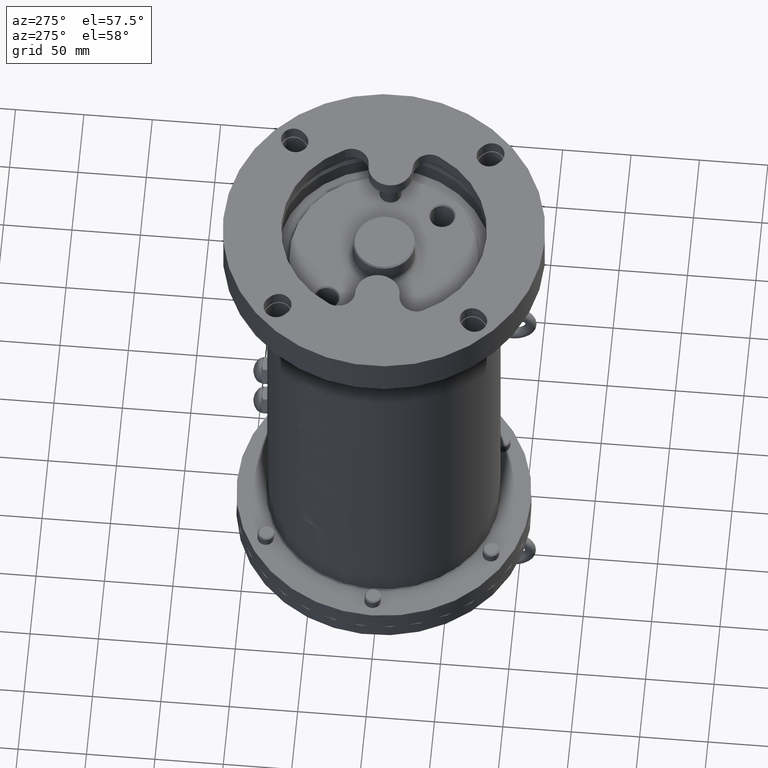
[diagram: clean part render]
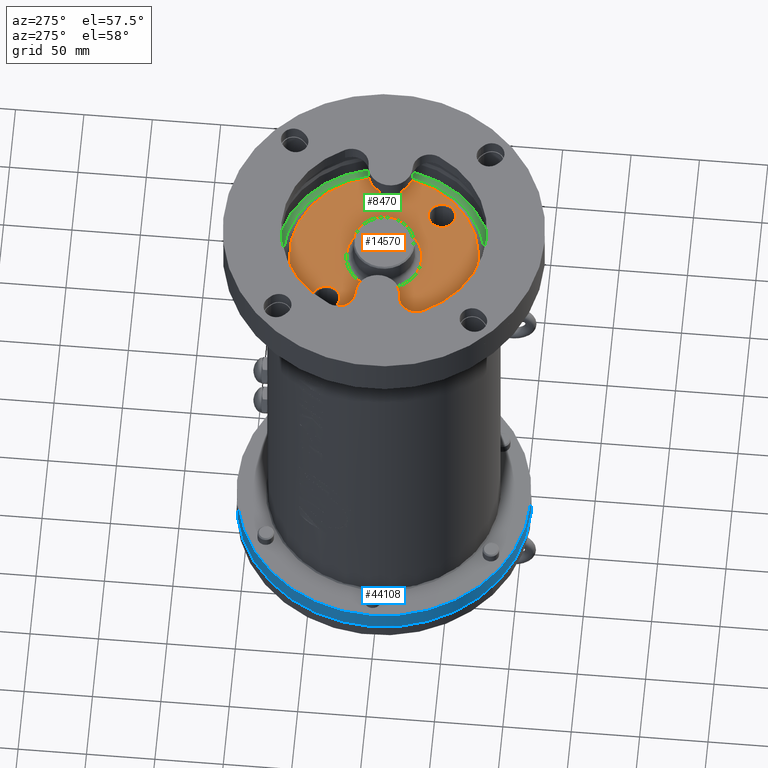
[diagram: same view with three faces highlighted in distinct colors, each labeled with its STEP entity id]
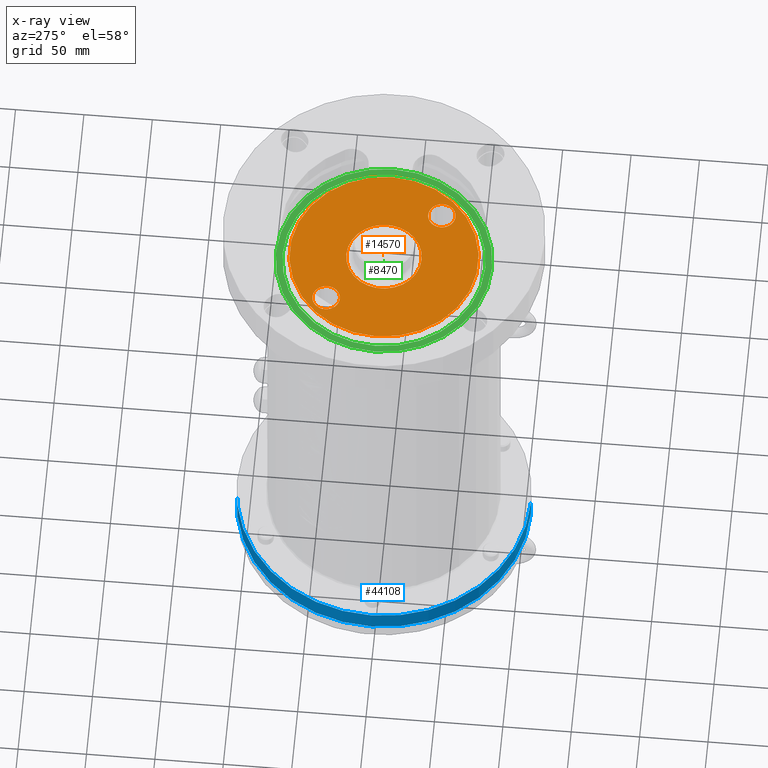
[diagram: x-ray of the same camera — body ghosted, the three highlighted faces saturated]
A machine part, auxiliary view with three faces highlighted in distinct colors.
The next image is the same camera in x-ray (body ghosted, the three faces saturated) — at least one of them is partly hidden behind the body in this view.
Their STEP definitions:

[orange] entity #14570 — the highlighted planar face has unit normal (0, -0, 1).
#129 = ORIENTED_EDGE ( 'NONE', *, *, #36971, .T. ) ;
#138 = ORIENTED_EDGE ( 'NONE', *, *, #23995, .T. ) ;
#190 = AXIS2_PLACEMENT_3D ( 'NONE', #16035, #9126, #12607 ) ;
#428 = ORIENTED_EDGE ( 'NONE', *, *, #6793, .T. ) ;
#713 = AXIS2_PLACEMENT_3D ( 'NONE', #8899, #32845, #40019 ) ;
#1020 = DIRECTION ( 'NONE',  ( -0.0000000000000000000, 1.224646799147353900E-016, -1.000000000000000000 ) ) ;
#1089 = CIRCLE ( 'NONE', #14465, 69.00000000000000000 ) ;
#1267 = CARTESIAN_POINT ( 'NONE',  ( 38.89087296526004400, -38.89087296526020100, -30.00000000000000000 ) ) ;
#1721 = ORIENTED_EDGE ( 'NONE', *, *, #43024, .T. ) ;
#2220 = FACE_BOUND ( 'NONE', #3820, .T. ) ;
#3801 = DIRECTION ( 'NONE',  ( 0.0000000000000000000, 1.000000000000000000, 1.005636797667714300E-016 ) ) ;
#3820 = EDGE_LOOP ( 'NONE', ( #1721, #26472 ) ) ;
#3966 = CARTESIAN_POINT ( 'NONE',  ( 0.0000000000000000000, -27.50000000000000000, -30.00000000000000700 ) ) ;
#5443 = CARTESIAN_POINT ( 'NONE',  ( -69.00000000000000000, -6.123233995736771200E-016, -30.00000000000000000 ) ) ;
#5591 = VERTEX_POINT ( 'NONE', #31689 ) ;
#5869 = DIRECTION ( 'NONE',  ( -0.0000000000000000000, 1.224646799147353900E-016, -1.000000000000000000 ) ) ;
#6096 = CARTESIAN_POINT ( 'NONE',  ( 28.89087296526008000, -38.89087296526020100, -30.00000000000000000 ) ) ;
#6720 = CIRCLE ( 'NONE', #25494, 10.00000000000000200 ) ;
#6793 = EDGE_CURVE ( 'NONE', #25010, #5591, #38236, .T. ) ;
#7366 = ORIENTED_EDGE ( 'NONE', *, *, #27241, .T. ) ;
#8613 = FACE_OUTER_BOUND ( 'NONE', #24585, .T. ) ;
#8899 = CARTESIAN_POINT ( 'NONE',  ( 0.0000000000000000000, -6.123233995736771200E-016, -30.00000000000000000 ) ) ;
#9126 = DIRECTION ( 'NONE',  ( -0.0000000000000000000, 1.224646799147353900E-016, -1.000000000000000000 ) ) ;
#10130 = DIRECTION ( 'NONE',  ( 0.0000000000000000000, 1.000000000000000000, 1.005636797667714300E-016 ) ) ;
#10599 = CIRCLE ( 'NONE', #16439, 69.00000000000000000 ) ;
#11569 = DIRECTION ( 'NONE',  ( -0.0000000000000000000, 1.224646799147353900E-016, -1.000000000000000000 ) ) ;
#12607 = DIRECTION ( 'NONE',  ( 0.0000000000000000000, -1.000000000000000000, 0.0000000000000000000 ) ) ;
#12908 = DIRECTION ( 'NONE',  ( 0.0000000000000000000, -1.000000000000000000, 0.0000000000000000000 ) ) ;
#14465 = AXIS2_PLACEMENT_3D ( 'NONE', #41351, #23859, #3801 ) ;
#14515 = CIRCLE ( 'NONE', #43359, 27.50000000000000000 ) ;
#14570 = ADVANCED_FACE ( 'NONE', ( #2220, #22575, #35926, #8613 ), #21224, .T. ) ;
#14654 = CIRCLE ( 'NONE', #39421, 10.00000000000000200 ) ;
#14916 = VERTEX_POINT ( 'NONE', #43154 ) ;
#16035 = CARTESIAN_POINT ( 'NONE',  ( -38.89087296526004400, 38.89087296526020100, -30.00000000000000000 ) ) ;
#16320 = VERTEX_POINT ( 'NONE', #3966 ) ;
#16325 = CIRCLE ( 'NONE', #713, 27.50000000000000000 ) ;
#16439 = AXIS2_PLACEMENT_3D ( 'NONE', #38717, #31845, #10130 ) ;
#17511 = CARTESIAN_POINT ( 'NONE',  ( -38.89087296526004400, 38.89087296526020100, -30.00000000000000000 ) ) ;
#18485 = DIRECTION ( 'NONE',  ( 0.0000000000000000000, -1.000000000000000000, 0.0000000000000000000 ) ) ;
#21224 = PLANE ( 'NONE',  #34714 ) ;
#21316 = EDGE_LOOP ( 'NONE', ( #428, #138 ) ) ;
#21382 = VERTEX_POINT ( 'NONE', #5443 ) ;
#21513 = CARTESIAN_POINT ( 'NONE',  ( -28.89087296526007300, 38.89087296526020100, -30.00000000000000000 ) ) ;
#22575 = FACE_BOUND ( 'NONE', #21316, .T. ) ;
#22611 = VERTEX_POINT ( 'NONE', #6096 ) ;
#22993 = VERTEX_POINT ( 'NONE', #26007 ) ;
#23260 = EDGE_CURVE ( 'NONE', #21382, #22993, #1089, .T. ) ;
#23859 = DIRECTION ( 'NONE',  ( 0.0000000000000000000, 1.224646799147353900E-016, -1.000000000000000000 ) ) ;
#23995 = EDGE_CURVE ( 'NONE', #5591, #25010, #33594, .T. ) ;
#24517 = DIRECTION ( 'NONE',  ( 0.0000000000000000000, -1.000000000000000000, 0.0000000000000000000 ) ) ;
#24585 = EDGE_LOOP ( 'NONE', ( #31947, #30949 ) ) ;
#25010 = VERTEX_POINT ( 'NONE', #21513 ) ;
#25494 = AXIS2_PLACEMENT_3D ( 'NONE', #26411, #5869, #12908 ) ;
#26007 = CARTESIAN_POINT ( 'NONE',  ( 69.00000000000000000, 8.143901214329898400E-015, -30.00000000000000000 ) ) ;
#26411 = CARTESIAN_POINT ( 'NONE',  ( 38.89087296526004400, -38.89087296526020100, -30.00000000000000000 ) ) ;
#26472 = ORIENTED_EDGE ( 'NONE', *, *, #38266, .T. ) ;
#27241 = EDGE_CURVE ( 'NONE', #16320, #42416, #14515, .T. ) ;
#27354 = CARTESIAN_POINT ( 'NONE',  ( 0.0000000000000000000, -6.123233995736771200E-016, -30.00000000000000000 ) ) ;
#27984 = DIRECTION ( 'NONE',  ( 0.0000000000000000000, -1.000000000000000000, -1.224646799147352000E-016 ) ) ;
#28133 = DIRECTION ( 'NONE',  ( 0.0000000000000000000, -1.224646799147352000E-016, 1.000000000000000000 ) ) ;
#29854 = EDGE_LOOP ( 'NONE', ( #7366, #129 ) ) ;
#30949 = ORIENTED_EDGE ( 'NONE', *, *, #36158, .F. ) ;
#31689 = CARTESIAN_POINT ( 'NONE',  ( -48.89087296526002300, 38.89087296526020100, -30.00000000000000000 ) ) ;
#31845 = DIRECTION ( 'NONE',  ( 0.0000000000000000000, 1.224646799147353900E-016, -1.000000000000000000 ) ) ;
#31947 = ORIENTED_EDGE ( 'NONE', *, *, #23260, .F. ) ;
#32845 = DIRECTION ( 'NONE',  ( -0.0000000000000000000, 1.224646799147353900E-016, -1.000000000000000000 ) ) ;
#33594 = CIRCLE ( 'NONE', #190, 10.00000000000000200 ) ;
#33746 = DIRECTION ( 'NONE',  ( -0.0000000000000000000, 1.224646799147353900E-016, -1.000000000000000000 ) ) ;
#34714 = AXIS2_PLACEMENT_3D ( 'NONE', #35253, #28133, #27984 ) ;
#35253 = CARTESIAN_POINT ( 'NONE',  ( 0.0000000000000000000, 69.00000000000000000, -30.00000000000000000 ) ) ;
#35926 = FACE_BOUND ( 'NONE', #29854, .T. ) ;
#36158 = EDGE_CURVE ( 'NONE', #22993, #21382, #10599, .T. ) ;
#36971 = EDGE_CURVE ( 'NONE', #42416, #16320, #16325, .T. ) ;
#37179 = DIRECTION ( 'NONE',  ( 0.0000000000000000000, -1.000000000000000000, -1.261617073437678000E-016 ) ) ;
#38236 = CIRCLE ( 'NONE', #41183, 10.00000000000000200 ) ;
#38266 = EDGE_CURVE ( 'NONE', #22611, #14916, #14654, .T. ) ;
#38717 = CARTESIAN_POINT ( 'NONE',  ( 0.0000000000000000000, -6.123233995736771200E-016, -30.00000000000000000 ) ) ;
#39421 = AXIS2_PLACEMENT_3D ( 'NONE', #1267, #11569, #18485 ) ;
#40019 = DIRECTION ( 'NONE',  ( 0.0000000000000000000, -1.000000000000000000, -1.261617073437678000E-016 ) ) ;
#40732 = CARTESIAN_POINT ( 'NONE',  ( 3.367778697655221300E-015, 27.50000000000000000, -30.00000000000000000 ) ) ;
#41183 = AXIS2_PLACEMENT_3D ( 'NONE', #17511, #1020, #24517 ) ;
#41351 = CARTESIAN_POINT ( 'NONE',  ( 0.0000000000000000000, -6.123233995736771200E-016, -30.00000000000000000 ) ) ;
#42416 = VERTEX_POINT ( 'NONE', #40732 ) ;
#43024 = EDGE_CURVE ( 'NONE', #14916, #22611, #6720, .T. ) ;
#43154 = CARTESIAN_POINT ( 'NONE',  ( 48.89087296526001600, -38.89087296526020100, -30.00000000000000000 ) ) ;
#43359 = AXIS2_PLACEMENT_3D ( 'NONE', #27354, #33746, #37179 ) ;

[blue] entity #44108 — the highlighted cylindrical surface (partial cylindrical patch) has radius 107.5 mm, axis along (0, 0, 1).
#639 = VERTEX_POINT ( 'NONE', #8654 ) ;
#3102 = CARTESIAN_POINT ( 'NONE',  ( 0.0000000000000000000, 0.0000000000000000000, -348.0000000000000000 ) ) ;
#3997 = CARTESIAN_POINT ( 'NONE',  ( 0.0000000000000000000, 0.0000000000000000000, -263.6178635562765200 ) ) ;
#4944 = LINE ( 'NONE', #5308, #8656 ) ;
#5308 = CARTESIAN_POINT ( 'NONE',  ( 1.316495309083404700E-014, 107.5000000000000000, -263.6178635562765200 ) ) ;
#8654 = CARTESIAN_POINT ( 'NONE',  ( 1.316495309083404700E-014, 107.5000000000000000, -363.0000000000000000 ) ) ;
#8656 = VECTOR ( 'NONE', #32686, 1000.000000000000000 ) ;
#9825 = DIRECTION ( 'NONE',  ( 0.0000000000000000000, 0.0000000000000000000, 1.000000000000000000 ) ) ;
#10216 = LINE ( 'NONE', #34065, #11288 ) ;
#10594 = EDGE_CURVE ( 'NONE', #18417, #34754, #29977, .T. ) ;
#11088 = ORIENTED_EDGE ( 'NONE', *, *, #10594, .F. ) ;
#11288 = VECTOR ( 'NONE', #13717, 1000.000000000000000 ) ;
#12651 = CYLINDRICAL_SURFACE ( 'NONE', #18365, 107.5000000000000000 ) ;
#12687 = ORIENTED_EDGE ( 'NONE', *, *, #39641, .T. ) ;
#13644 = CIRCLE ( 'NONE', #22676, 107.5000000000000000 ) ;
#13717 = DIRECTION ( 'NONE',  ( 0.0000000000000000000, 0.0000000000000000000, 1.000000000000000000 ) ) ;
#14653 = CARTESIAN_POINT ( 'NONE',  ( 0.0000000000000000000, -107.5000000000000000, -348.0000000000000000 ) ) ;
#17202 = VERTEX_POINT ( 'NONE', #38500 ) ;
#17576 = DIRECTION ( 'NONE',  ( 0.0000000000000000000, 0.0000000000000000000, 1.000000000000000000 ) ) ;
#18365 = AXIS2_PLACEMENT_3D ( 'NONE', #3997, #27967, #38537 ) ;
#18417 = VERTEX_POINT ( 'NONE', #34996 ) ;
#19609 = EDGE_CURVE ( 'NONE', #639, #17202, #13644, .T. ) ;
#20130 = FACE_OUTER_BOUND ( 'NONE', #39890, .T. ) ;
#21007 = DIRECTION ( 'NONE',  ( 0.0000000000000000000, -1.000000000000000000, 0.0000000000000000000 ) ) ;
#22676 = AXIS2_PLACEMENT_3D ( 'NONE', #38026, #17576, #21007 ) ;
#27967 = DIRECTION ( 'NONE',  ( 0.0000000000000000000, 0.0000000000000000000, 1.000000000000000000 ) ) ;
#28939 = ORIENTED_EDGE ( 'NONE', *, *, #19609, .T. ) ;
#29977 = CIRCLE ( 'NONE', #39990, 107.5000000000000000 ) ;
#32686 = DIRECTION ( 'NONE',  ( 0.0000000000000000000, 0.0000000000000000000, 1.000000000000000000 ) ) ;
#33612 = EDGE_CURVE ( 'NONE', #639, #18417, #4944, .T. ) ;
#33909 = DIRECTION ( 'NONE',  ( 0.0000000000000000000, -1.000000000000000000, 0.0000000000000000000 ) ) ;
#34065 = CARTESIAN_POINT ( 'NONE',  ( 0.0000000000000000000, -107.5000000000000000, -263.6178635562765200 ) ) ;
#34754 = VERTEX_POINT ( 'NONE', #14653 ) ;
#34996 = CARTESIAN_POINT ( 'NONE',  ( 1.316495309083404700E-014, 107.5000000000000000, -348.0000000000000000 ) ) ;
#38026 = CARTESIAN_POINT ( 'NONE',  ( 0.0000000000000000000, 0.0000000000000000000, -363.0000000000000000 ) ) ;
#38500 = CARTESIAN_POINT ( 'NONE',  ( 0.0000000000000000000, -107.5000000000000000, -363.0000000000000000 ) ) ;
#38537 = DIRECTION ( 'NONE',  ( 0.0000000000000000000, -1.000000000000000000, 0.0000000000000000000 ) ) ;
#39641 = EDGE_CURVE ( 'NONE', #17202, #34754, #10216, .T. ) ;
#39890 = EDGE_LOOP ( 'NONE', ( #42926, #28939, #12687, #11088 ) ) ;
#39990 = AXIS2_PLACEMENT_3D ( 'NONE', #3102, #9825, #33909 ) ;
#42926 = ORIENTED_EDGE ( 'NONE', *, *, #33612, .F. ) ;
#44108 = ADVANCED_FACE ( 'NONE', ( #20130 ), #12651, .T. ) ;

[green] entity #8470 — the highlighted planar face has unit normal (0, 0, -1).
#4328 = DIRECTION ( 'NONE',  ( -1.000000000000000000, 0.0000000000000000000, 0.0000000000000000000 ) ) ;
#4812 = ORIENTED_EDGE ( 'NONE', *, *, #18368, .T. ) ;
#4982 = DIRECTION ( 'NONE',  ( 1.000000000000000000, 0.0000000000000000000, 0.0000000000000000000 ) ) ;
#5281 = DIRECTION ( 'NONE',  ( 0.0000000000000000000, 0.0000000000000000000, -1.000000000000000000 ) ) ;
#6010 = DIRECTION ( 'NONE',  ( -1.000000000000000000, 0.0000000000000000000, 0.0000000000000000000 ) ) ;
#7158 = ORIENTED_EDGE ( 'NONE', *, *, #38930, .T. ) ;
#7746 = DIRECTION ( 'NONE',  ( 0.0000000000000000000, 0.0000000000000000000, -1.000000000000000000 ) ) ;
#8196 = DIRECTION ( 'NONE',  ( 1.000000000000000000, 0.0000000000000000000, 0.0000000000000000000 ) ) ;
#8470 = ADVANCED_FACE ( 'NONE', ( #18419, #9261 ), #38433, .F. ) ;
#9261 = FACE_OUTER_BOUND ( 'NONE', #35648, .T. ) ;
#9430 = VERTEX_POINT ( 'NONE', #17477 ) ;
#12331 = DIRECTION ( 'NONE',  ( -1.000000000000000000, 0.0000000000000000000, 0.0000000000000000000 ) ) ;
#17381 = EDGE_CURVE ( 'NONE', #23948, #9430, #18692, .T. ) ;
#17477 = CARTESIAN_POINT ( 'NONE',  ( 74.00000000000000000, 8.450062914116736300E-015, -35.00000000000000000 ) ) ;
#18315 = AXIS2_PLACEMENT_3D ( 'NONE', #18941, #42835, #6010 ) ;
#18368 = EDGE_CURVE ( 'NONE', #32880, #25179, #35953, .T. ) ;
#18419 = FACE_BOUND ( 'NONE', #26838, .T. ) ;
#18692 = CIRCLE ( 'NONE', #18315, 74.00000000000000000 ) ;
#18941 = CARTESIAN_POINT ( 'NONE',  ( 0.0000000000000000000, -6.123233995736771200E-016, -35.00000000000000000 ) ) ;
#19076 = CARTESIAN_POINT ( 'NONE',  ( 0.0000000000000000000, 0.0000000000000000000, -35.00000000000000000 ) ) ;
#21407 = CARTESIAN_POINT ( 'NONE',  ( 0.0000000000000000000, 0.0000000000000000000, -35.00000000000000000 ) ) ;
#22374 = ORIENTED_EDGE ( 'NONE', *, *, #35673, .T. ) ;
#23495 = CIRCLE ( 'NONE', #33070, 74.00000000000000000 ) ;
#23948 = VERTEX_POINT ( 'NONE', #34540 ) ;
#24238 = CIRCLE ( 'NONE', #33129, 79.00000000000000000 ) ;
#25179 = VERTEX_POINT ( 'NONE', #39568 ) ;
#26378 = CARTESIAN_POINT ( 'NONE',  ( -79.00000000000000000, 9.674709713264090900E-015, -35.00000000000000000 ) ) ;
#26838 = EDGE_LOOP ( 'NONE', ( #28500, #22374 ) ) ;
#27527 = AXIS2_PLACEMENT_3D ( 'NONE', #21407, #41737, #8196 ) ;
#28500 = ORIENTED_EDGE ( 'NONE', *, *, #17381, .T. ) ;
#28677 = DIRECTION ( 'NONE',  ( 0.0000000000000000000, 0.0000000000000000000, 1.000000000000000000 ) ) ;
#31271 = CARTESIAN_POINT ( 'NONE',  ( 0.0000000000000000000, 0.0000000000000000000, -35.00000000000000000 ) ) ;
#32880 = VERTEX_POINT ( 'NONE', #26378 ) ;
#33070 = AXIS2_PLACEMENT_3D ( 'NONE', #39097, #5281, #12331 ) ;
#33129 = AXIS2_PLACEMENT_3D ( 'NONE', #19076, #28677, #4982 ) ;
#34540 = CARTESIAN_POINT ( 'NONE',  ( -74.00000000000000000, -6.123233995736771200E-016, -35.00000000000000000 ) ) ;
#35648 = EDGE_LOOP ( 'NONE', ( #7158, #4812 ) ) ;
#35673 = EDGE_CURVE ( 'NONE', #9430, #23948, #23495, .T. ) ;
#35953 = CIRCLE ( 'NONE', #27527, 79.00000000000000000 ) ;
#38433 = PLANE ( 'NONE',  #38876 ) ;
#38876 = AXIS2_PLACEMENT_3D ( 'NONE', #31271, #7746, #4328 ) ;
#38930 = EDGE_CURVE ( 'NONE', #25179, #32880, #24238, .T. ) ;
#39097 = CARTESIAN_POINT ( 'NONE',  ( 0.0000000000000000000, -6.123233995736771200E-016, -35.00000000000000000 ) ) ;
#39568 = CARTESIAN_POINT ( 'NONE',  ( 79.00000000000000000, 0.0000000000000000000, -35.00000000000000000 ) ) ;
#41737 = DIRECTION ( 'NONE',  ( 0.0000000000000000000, 0.0000000000000000000, 1.000000000000000000 ) ) ;
#42835 = DIRECTION ( 'NONE',  ( 0.0000000000000000000, 0.0000000000000000000, -1.000000000000000000 ) ) ;